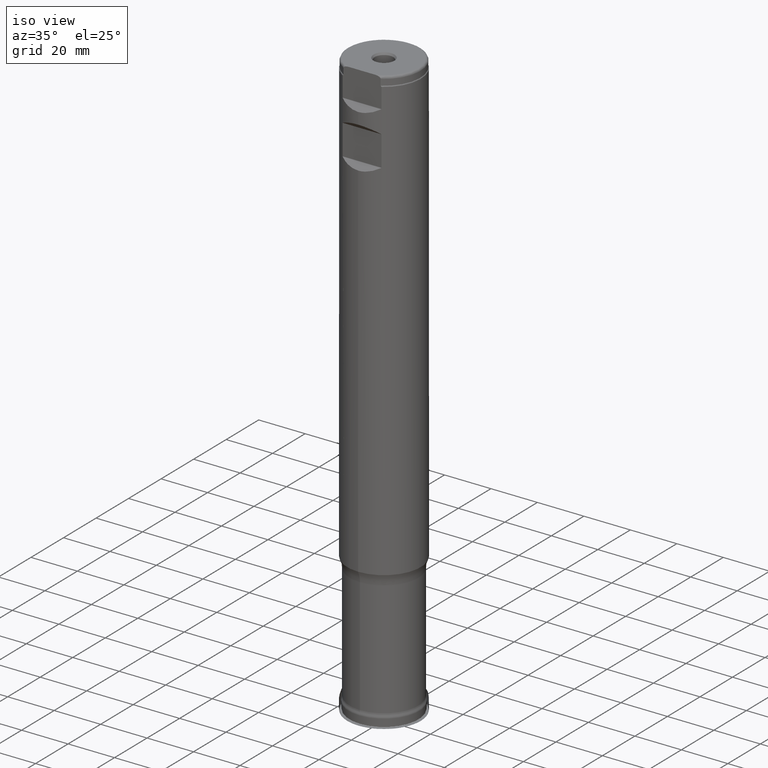
[diagram: clean part render]
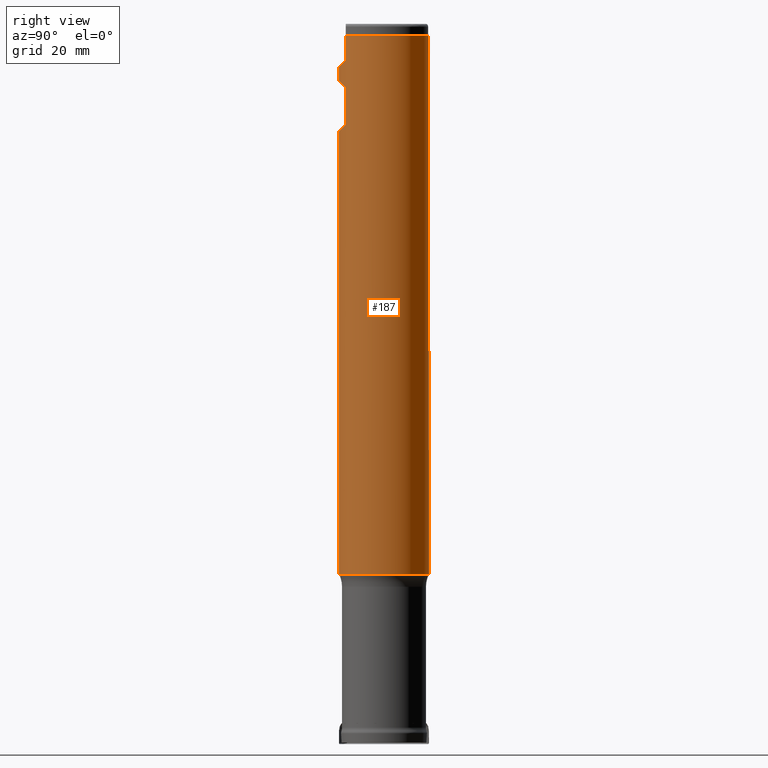
[diagram: tour spotlight — one face highlighted and labeled with its STEP entity id]
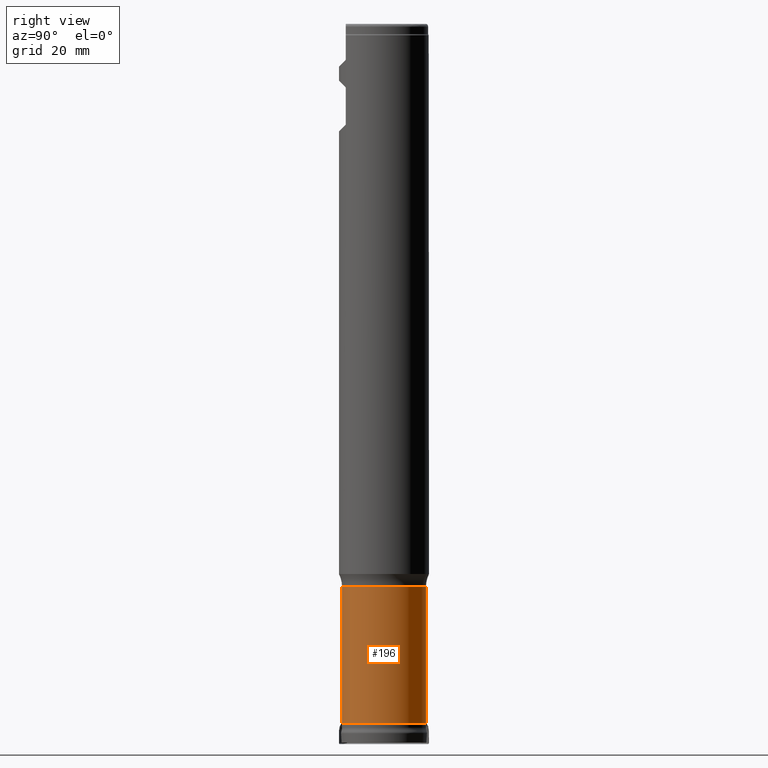
[diagram: tour spotlight — one face highlighted and labeled with its STEP entity id]
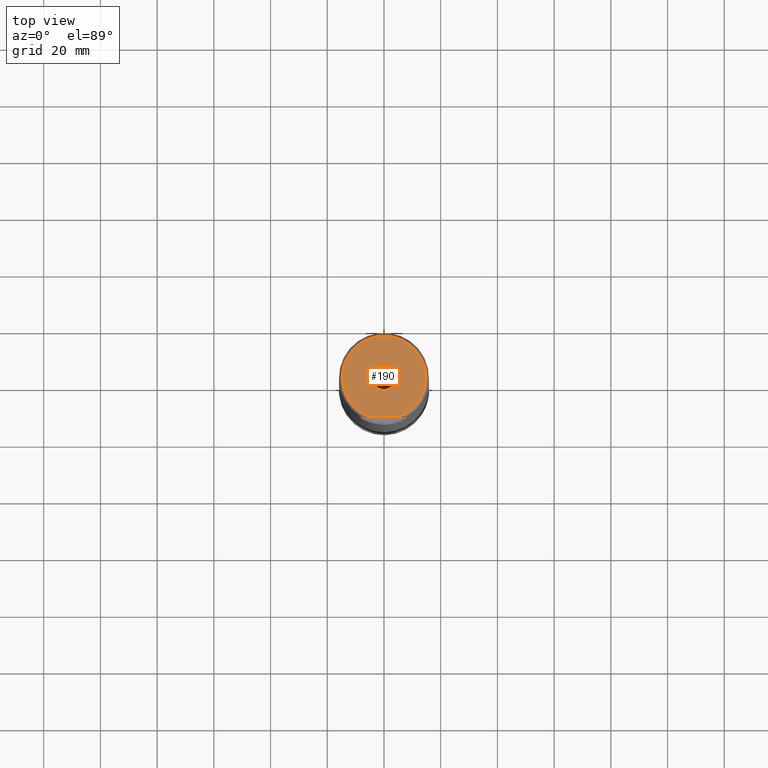
[diagram: tour spotlight — one face highlighted and labeled with its STEP entity id]
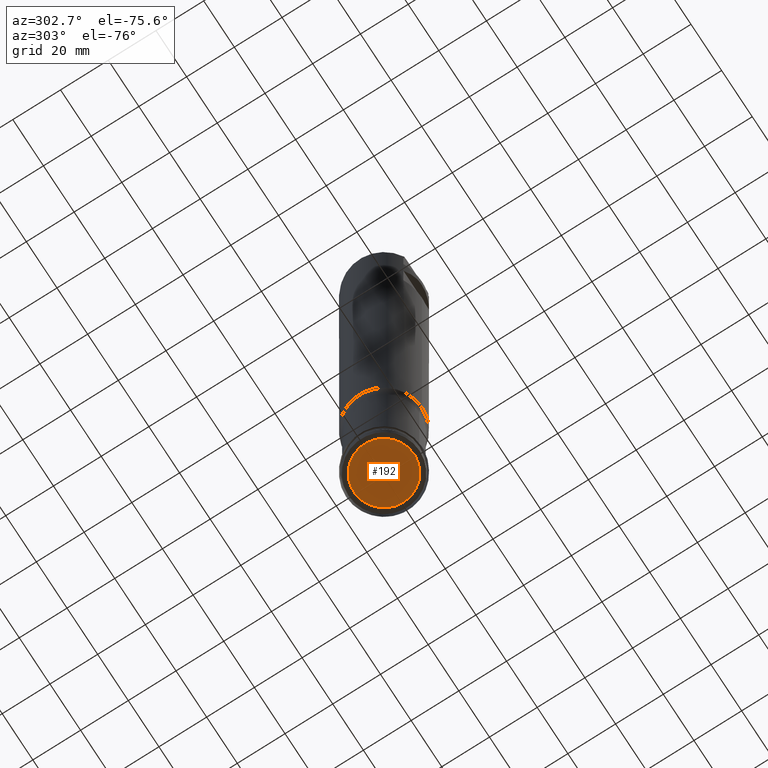
[diagram: tour spotlight — one face highlighted and labeled with its STEP entity id]
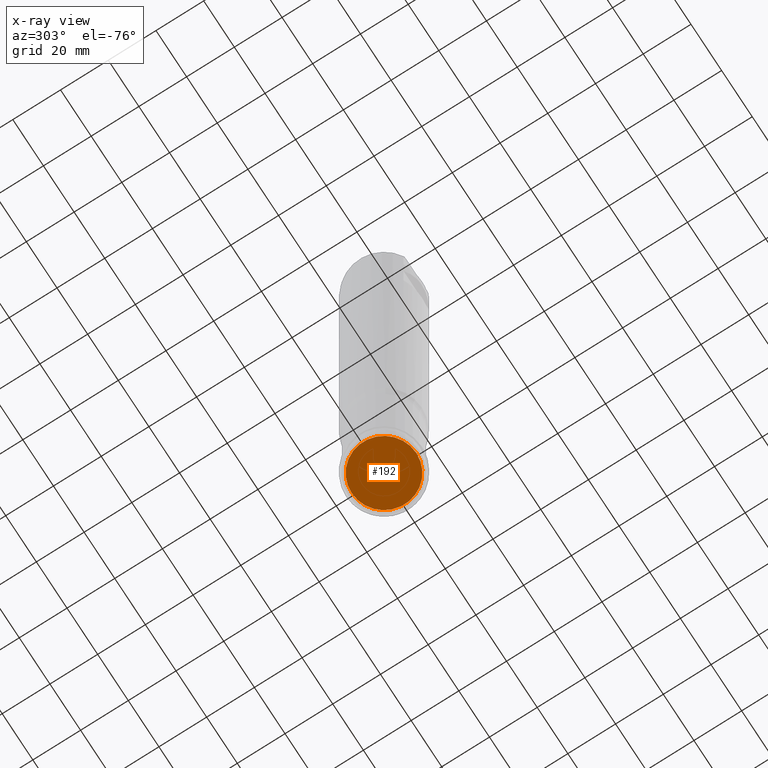
[diagram: x-ray of the same camera — body ghosted, this tour face saturated]
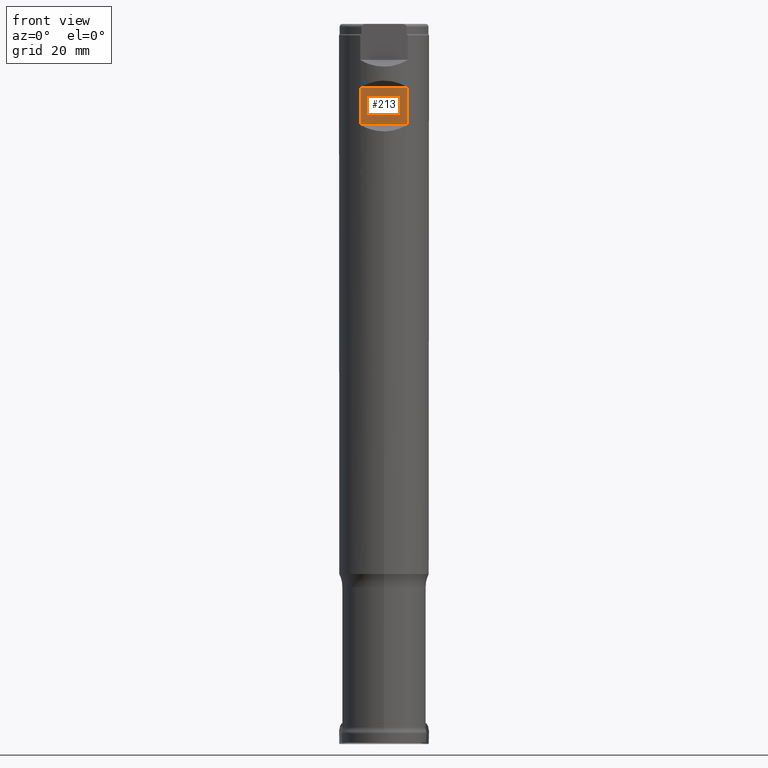
[diagram: tour spotlight — one face highlighted and labeled with its STEP entity id]
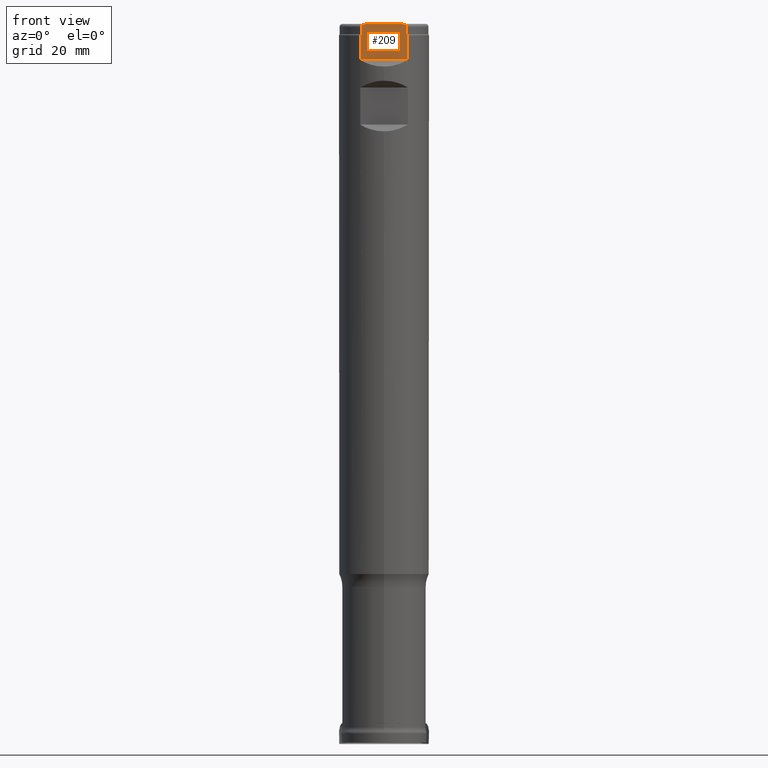
[diagram: tour spotlight — one face highlighted and labeled with its STEP entity id]
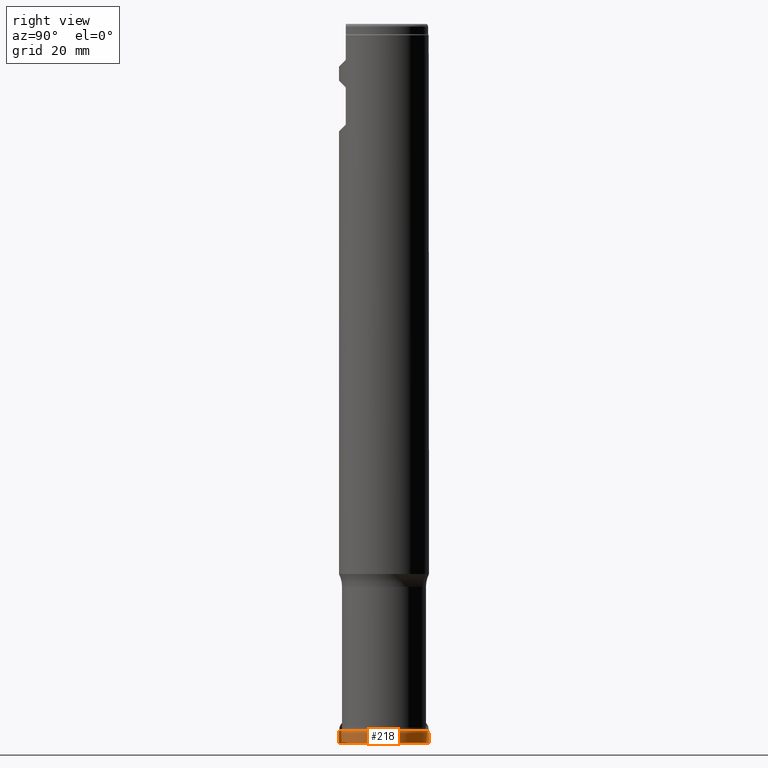
[diagram: tour spotlight — one face highlighted and labeled with its STEP entity id]
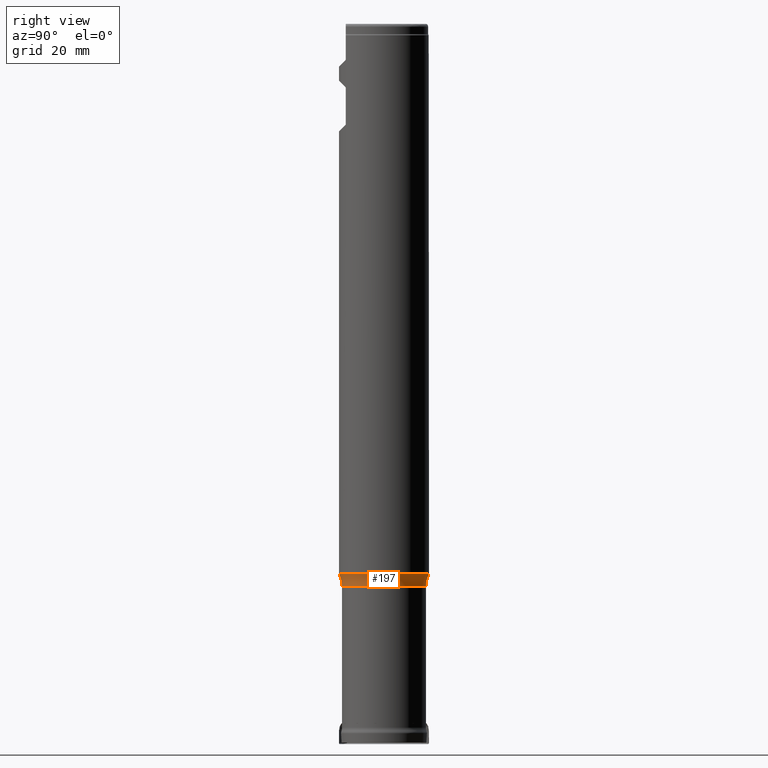
[diagram: tour spotlight — one face highlighted and labeled with its STEP entity id]
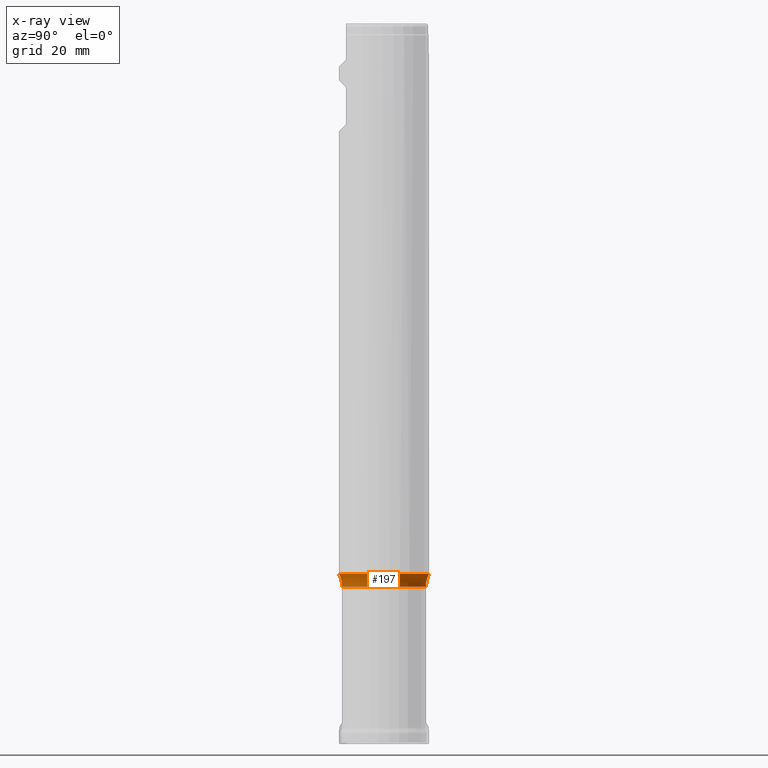
[diagram: x-ray of the same camera — body ghosted, this tour face saturated]
A machine part: a face-by-face anatomy tour. The part has 51 B-rep faces; the first image is the clean iso view, then the 8 largest visible faces are spotlighted one at a time (largest first), each with its STEP entity span.

Face 1 — right view, entity #187. In plain terms, the highlighted cylindrical surface (bore or boss wall) has radius 15.875 mm, axis along (0, 0, 1).
Definition (entity closure, byte-faithful):
#187=ADVANCED_FACE('',(#288,#289,#290),#238,.T.);
#238=CYLINDRICAL_SURFACE('',#816,15.875);
#246=CIRCLE('',#813,15.875);
#247=CIRCLE('',#814,15.875);
#288=FACE_BOUND('',#369,.T.);
#289=FACE_BOUND('',#370,.T.);
#290=FACE_BOUND('',#371,.T.);
#369=EDGE_LOOP('',(#500,#501,#502,#503,#504,#505,#506,#507));
#370=EDGE_LOOP('',(#508));
#371=EDGE_LOOP('',(#509,#510,#511,#512,#513,#514));
#459=LINE('',#1309,#478);
#460=LINE('',#1341,#479);
#461=LINE('',#1359,#480);
#462=LINE('',#1363,#481);
#478=VECTOR('',#890,1.);
#479=VECTOR('',#893,1.);
#480=VECTOR('',#896,1.);
#481=VECTOR('',#899,1.);
#497=ELLIPSE('',#811,22.4506403026729,15.875);
#498=ELLIPSE('',#812,22.4506403026729,15.875);
#499=ELLIPSE('',#815,22.4506403026729,15.875);
#500=ORIENTED_EDGE('',*,*,#696,.F.);
#501=ORIENTED_EDGE('',*,*,#697,.T.);
#502=ORIENTED_EDGE('',*,*,#698,.F.);
#503=ORIENTED_EDGE('',*,*,#699,.T.);
#504=ORIENTED_EDGE('',*,*,#700,.F.);
#505=ORIENTED_EDGE('',*,*,#701,.T.);
#506=ORIENTED_EDGE('',*,*,#702,.F.);
#507=ORIENTED_EDGE('',*,*,#703,.T.);
#508=ORIENTED_EDGE('',*,*,#704,.T.);
#509=ORIENTED_EDGE('',*,*,#705,.F.);
#510=ORIENTED_EDGE('',*,*,#706,.T.);
#511=ORIENTED_EDGE('',*,*,#707,.F.);
#512=ORIENTED_EDGE('',*,*,#708,.T.);
#513=ORIENTED_EDGE('',*,*,#709,.F.);
#514=ORIENTED_EDGE('',*,*,#710,.T.);
#636=VERTEX_POINT('',#1291);
#637=VERTEX_POINT('',#1292);
#638=VERTEX_POINT('',#1294);
#639=VERTEX_POINT('',#1308);
#640=VERTEX_POINT('',#1310);
#641=VERTEX_POINT('',#1324);
#642=VERTEX_POINT('',#1326);
#643=VERTEX_POINT('',#1340);
#644=VERTEX_POINT('',#1343);
#645=VERTEX_POINT('',#1357);
#646=VERTEX_POINT('',#1358);
#647=VERTEX_POINT('',#1360);
#648=VERTEX_POINT('',#1362);
#649=VERTEX_POINT('',#1364);
#650=VERTEX_POINT('',#1378);
#696=EDGE_CURVE('',#636,#637,#785,.T.);
#697=EDGE_CURVE('',#636,#638,#497,.T.);
#698=EDGE_CURVE('',#639,#638,#786,.T.);
#699=EDGE_CURVE('',#639,#640,#459,.T.);
#700=EDGE_CURVE('',#641,#640,#787,.T.);
#701=EDGE_CURVE('',#641,#642,#498,.T.);
#702=EDGE_CURVE('',#643,#642,#788,.T.);
#703=EDGE_CURVE('',#643,#637,#460,.T.);
#704=EDGE_CURVE('',#644,#644,#246,.T.);
#705=EDGE_CURVE('',#645,#646,#789,.T.);
#706=EDGE_CURVE('',#645,#647,#461,.T.);
#707=EDGE_CURVE('',#648,#647,#247,.T.);
#708=EDGE_CURVE('',#648,#649,#462,.T.);
#709=EDGE_CURVE('',#650,#649,#790,.T.);
#710=EDGE_CURVE('',#650,#646,#499,.T.);
#785=B_SPLINE_CURVE_WITH_KNOTS('',3,(#1278,#1279,#1280,#1281,#1282,#1283,
#1284,#1285,#1286,#1287,#1288,#1289,#1290),.UNSPECIFIED.,.F.,.F.,(4,3,3,
3,4),(0.,0.454533174547846,0.702164538890485,0.910432884672705,1.),
 .UNSPECIFIED.);
#786=B_SPLINE_CURVE_WITH_KNOTS('',3,(#1295,#1296,#1297,#1298,#1299,#1300,
#1301,#1302,#1303,#1304,#1305,#1306,#1307),.UNSPECIFIED.,.F.,.F.,(4,3,3,
3,4),(0.,0.19914721607593,0.441583635070344,0.807737111942782,1.),
 .UNSPECIFIED.);
#787=B_SPLINE_CURVE_WITH_KNOTS('',3,(#1311,#1312,#1313,#1314,#1315,#1316,
#1317,#1318,#1319,#1320,#1321,#1322,#1323),.UNSPECIFIED.,.F.,.F.,(4,3,3,
3,4),(0.,0.454533174547862,0.702164538890488,0.910432884672609,1.),
 .UNSPECIFIED.);
#788=B_SPLINE_CURVE_WITH_KNOTS('',3,(#1327,#1328,#1329,#1330,#1331,#1332,
#1333,#1334,#1335,#1336,#1337,#1338,#1339),.UNSPECIFIED.,.F.,.F.,(4,3,3,
3,4),(0.,0.19914721607583,0.441583635070221,0.807737111942809,1.),
 .UNSPECIFIED.);
#789=B_SPLINE_CURVE_WITH_KNOTS('',3,(#1344,#1345,#1346,#1347,#1348,#1349,
#1350,#1351,#1352,#1353,#1354,#1355,#1356),.UNSPECIFIED.,.F.,.F.,(4,3,3,
3,4),(0.,0.199147216075832,0.441583635070225,0.807737111942812,1.),
 .UNSPECIFIED.);
#790=B_SPLINE_CURVE_WITH_KNOTS('',3,(#1365,#1366,#1367,#1368,#1369,#1370,
#1371,#1372,#1373,#1374,#1375,#1376,#1377),.UNSPECIFIED.,.F.,.F.,(4,3,3,
3,4),(0.,0.454533174547855,0.702164538890484,0.910432884672608,1.),
 .UNSPECIFIED.);
#811=AXIS2_PLACEMENT_3D('',#1293,#888,#889);
#812=AXIS2_PLACEMENT_3D('',#1325,#891,#892);
#813=AXIS2_PLACEMENT_3D('',#1342,#894,#895);
#814=AXIS2_PLACEMENT_3D('',#1361,#897,#898);
#815=AXIS2_PLACEMENT_3D('',#1379,#900,#901);
#816=AXIS2_PLACEMENT_3D('',#1380,#902,#903);
#888=DIRECTION('',(8.28344032153662E-16,0.707106781186548,0.707106781186547));
#889=DIRECTION('',(-8.28344032153662E-16,-0.707106781186547,0.707106781186548));
#890=DIRECTION('',(0.,-1.17145536458252E-15,-1.));
#891=DIRECTION('',(-8.28344032153663E-16,0.707106781186547,-0.707106781186549));
#892=DIRECTION('',(-8.28344032153663E-16,0.707106781186549,0.707106781186547));
#893=DIRECTION('',(0.,1.17145536458252E-15,1.));
#894=DIRECTION('',(0.,1.17145536458252E-15,1.));
#895=DIRECTION('',(0.,-1.,1.31128703695885E-15));
#896=DIRECTION('',(0.,1.17145536458252E-15,1.));
#897=DIRECTION('',(0.,1.17145536458252E-15,1.));
#898=DIRECTION('',(0.,-1.,0.));
#899=DIRECTION('',(0.,-1.17145536458252E-15,-1.));
#900=DIRECTION('',(-8.28344032153662E-16,0.707106781186547,-0.707106781186548));
#901=DIRECTION('',(-8.28344032153661E-16,0.707106781186548,0.707106781186547));
#902=DIRECTION('',(0.,1.17145536458252E-15,1.));
#903=DIRECTION('',(0.,-1.,1.17145536458252E-15));
#1278=CARTESIAN_POINT('',(-8.22968557485393,-13.5752679656438,231.669192965644));
#1279=CARTESIAN_POINT('',(-8.26214403842775,-13.5555907887268,231.649515788727));
#1280=CARTESIAN_POINT('',(-8.29324127122086,-13.5365680579466,231.62516207342));
#1281=CARTESIAN_POINT('',(-8.31880056112414,-13.5208425116275,231.594709416179));
#1282=CARTESIAN_POINT('',(-8.33281049061591,-13.5122227966048,231.578017263056));
#1283=CARTESIAN_POINT('',(-8.34532550776586,-13.5044914646335,231.559155789535));
#1284=CARTESIAN_POINT('',(-8.35473859034975,-13.4986654187336,231.538500120755));
#1285=CARTESIAN_POINT('',(-8.36264707757228,-13.493770613111,231.521146072157));
#1286=CARTESIAN_POINT('',(-8.36846404353176,-13.4901610267411,231.502110432187));
#1287=CARTESIAN_POINT('',(-8.3711476120283,-13.4884955668757,231.482676158377));
#1288=CARTESIAN_POINT('',(-8.37231518540506,-13.4877709546285,231.474220648213));
#1289=CARTESIAN_POINT('',(-8.37291264972948,-13.4873999999997,231.465627374111));
#1290=CARTESIAN_POINT('',(-8.37291264972948,-13.4873999999997,231.457060931288));
#1291=CARTESIAN_POINT('',(-8.22968557485393,-13.5752679656438,231.669192965644));
#1292=CARTESIAN_POINT('',(-8.37291264972948,-13.4873999999997,231.457060931288));
#1293=CARTESIAN_POINT('',(0.,2.55487298424109E-13,218.093925));
#1294=CARTESIAN_POINT('',(8.22968557485393,-13.5752679656438,231.669192965644));
#1295=CARTESIAN_POINT('',(8.37291264972948,-13.4873999999997,231.457060931288));
#1296=CARTESIAN_POINT('',(8.37291264972948,-13.4873999999997,231.475881064048));
#1297=CARTESIAN_POINT('',(8.36992693774143,-13.4892545485355,231.494934859006));
#1298=CARTESIAN_POINT('',(8.36453687582311,-13.4925960383089,231.51265431373));
#1299=CARTESIAN_POINT('',(8.35798061989729,-13.4966604929404,231.534207550372));
#1300=CARTESIAN_POINT('',(8.34778398154641,-13.5029748527274,231.554425584553));
#1301=CARTESIAN_POINT('',(8.33568000754059,-13.5104427689059,231.572363542468));
#1302=CARTESIAN_POINT('',(8.31744673800205,-13.5216923410305,231.599385049741));
#1303=CARTESIAN_POINT('',(8.29449252987567,-13.5357984747799,231.622249165019));
#1304=CARTESIAN_POINT('',(8.27002445290943,-13.5507313658073,231.641419162972));
#1305=CARTESIAN_POINT('',(8.25706862585497,-13.5586383195838,231.651569661454));
#1306=CARTESIAN_POINT('',(8.24354784478495,-13.5668642919061,231.660789291911));
#1307=CARTESIAN_POINT('',(8.22968557485579,-13.5752679656428,231.669192965647));
#1308=CARTESIAN_POINT('',(8.37291264972948,-13.4873999999997,231.457060931288));
#1309=CARTESIAN_POINT('',(8.37291264972948,-13.4874,1.57998870842703E-14));
#1310=CARTESIAN_POINT('',(8.37291264972948,-13.4873999999997,218.599189068712));
#1311=CARTESIAN_POINT('',(8.22968557485392,-13.5752679656438,218.387057034356));
#1312=CARTESIAN_POINT('',(8.26214403842775,-13.5555907887268,218.406734211273));
#1313=CARTESIAN_POINT('',(8.29324127122085,-13.5365680579466,218.43108792658));
#1314=CARTESIAN_POINT('',(8.31880056112414,-13.5208425116275,218.461540583821));
#1315=CARTESIAN_POINT('',(8.3328104906159,-13.5122227966048,218.478232736944));
#1316=CARTESIAN_POINT('',(8.34532550776586,-13.5044914646335,218.497094210465));
#1317=CARTESIAN_POINT('',(8.35473859034975,-13.4986654187336,218.517749879245));
#1318=CARTESIAN_POINT('',(8.36264707757227,-13.493770613111,218.535103927843));
#1319=CARTESIAN_POINT('',(8.36846404353175,-13.4901610267411,218.554139567813));
#1320=CARTESIAN_POINT('',(8.3711476120283,-13.4884955668757,218.573573841623));
#1321=CARTESIAN_POINT('',(8.37231518540506,-13.4877709546285,218.582029351787));
#1322=CARTESIAN_POINT('',(8.37291264972949,-13.4873999999997,218.590622625889));
#1323=CARTESIAN_POINT('',(8.37291264972948,-13.4873999999997,218.599189068712));
#1324=CARTESIAN_POINT('',(8.22968557485392,-13.5752679656438,218.387057034356));
#1325=CARTESIAN_POINT('',(0.,2.71733510002285E-13,231.962325));
#1326=CARTESIAN_POINT('',(-8.22968557485393,-13.5752679656438,218.387057034356));
#1327=CARTESIAN_POINT('',(-8.37291264972948,-13.4873999999997,218.599189068712));
#1328=CARTESIAN_POINT('',(-8.37291264972949,-13.4873999999997,218.580368935952));
#1329=CARTESIAN_POINT('',(-8.36992693774143,-13.4892545485355,218.561315140994));
#1330=CARTESIAN_POINT('',(-8.36453687582311,-13.4925960383089,218.54359568627));
#1331=CARTESIAN_POINT('',(-8.35798061989729,-13.4966604929404,218.522042449628));
#1332=CARTESIAN_POINT('',(-8.34778398154642,-13.5029748527274,218.501824415447));
#1333=CARTESIAN_POINT('',(-8.3356800075406,-13.5104427689059,218.483886457532));
#1334=CARTESIAN_POINT('',(-8.31744673800206,-13.5216923410305,218.456864950259));
#1335=CARTESIAN_POINT('',(-8.29449252987566,-13.5357984747799,218.434000834981));
#1336=CARTESIAN_POINT('',(-8.27002445290941,-13.5507313658073,218.414830837028));
#1337=CARTESIAN_POINT('',(-8.25706862585496,-13.5586383195838,218.404680338546));
#1338=CARTESIAN_POINT('',(-8.24354784478493,-13.5668642919061,218.395460708089));
#1339=CARTESIAN_POINT('',(-8.22968557485578,-13.5752679656428,218.387057034353));
#1340=CARTESIAN_POINT('',(-8.37291264972948,-13.4873999999997,218.599189068712));
#1341=CARTESIAN_POINT('',(-8.37291264972948,-13.4874,1.57998870842703E-14));
#1342=CARTESIAN_POINT('',(0.,7.02812303070556E-14,59.9948));
#1343=CARTESIAN_POINT('',(0.,-15.8749999999999,59.9948));
#1344=CARTESIAN_POINT('',(-8.37291264972948,-13.4873999999997,241.424264068712));
#1345=CARTESIAN_POINT('',(-8.37291264972949,-13.4873999999997,241.405443935952));
#1346=CARTESIAN_POINT('',(-8.36992693774143,-13.4892545485354,241.386390140994));
#1347=CARTESIAN_POINT('',(-8.36453687582311,-13.4925960383088,241.36867068627));
#1348=CARTESIAN_POINT('',(-8.35798061989729,-13.4966604929404,241.347117449628));
#1349=CARTESIAN_POINT('',(-8.34778398154642,-13.5029748527274,241.326899415447));
#1350=CARTESIAN_POINT('',(-8.3356800075406,-13.5104427689058,241.308961457532));
#1351=CARTESIAN_POINT('',(-8.31744673800206,-13.5216923410305,241.281939950259));
#1352=CARTESIAN_POINT('',(-8.29449252987566,-13.5357984747799,241.259075834981));
#1353=CARTESIAN_POINT('',(-8.27002445290941,-13.5507313658073,241.239905837028));
#1354=CARTESIAN_POINT('',(-8.25706862585496,-13.5586383195838,241.229755338546));
#1355=CARTESIAN_POINT('',(-8.24354784478494,-13.5668642919061,241.220535708089));
#1356=CARTESIAN_POINT('',(-8.22968557485579,-13.5752679656428,241.212132034353));
#1357=CARTESIAN_POINT('',(-8.37291264972948,-13.4873999999997,241.424264068712));
#1358=CARTESIAN_POINT('',(-8.22968557485393,-13.5752679656438,241.212132034356));
#1359=CARTESIAN_POINT('',(-8.37291264972948,-13.4874,1.57998870842703E-14));
#1360=CARTESIAN_POINT('',(-8.37291264972948,-13.4873999999997,250.));
#1361=CARTESIAN_POINT('',(0.,2.92863841145631E-13,250.));
#1362=CARTESIAN_POINT('',(8.37291264972948,-13.4873999999997,250.));
#1363=CARTESIAN_POINT('',(8.37291264972948,-13.4874,1.57998870842703E-14));
#1364=CARTESIAN_POINT('',(8.37291264972948,-13.4873999999997,241.424264068712));
#1365=CARTESIAN_POINT('',(8.22968557485393,-13.5752679656438,241.212132034356));
#1366=CARTESIAN_POINT('',(8.26214403842775,-13.5555907887268,241.231809211273));
#1367=CARTESIAN_POINT('',(8.29324127122085,-13.5365680579466,241.25616292658));
#1368=CARTESIAN_POINT('',(8.31880056112414,-13.5208425116275,241.286615583821));
#1369=CARTESIAN_POINT('',(8.3328104906159,-13.5122227966048,241.303307736944));
#1370=CARTESIAN_POINT('',(8.34532550776586,-13.5044914646335,241.322169210465));
#1371=CARTESIAN_POINT('',(8.35473859034975,-13.4986654187336,241.342824879245));
#1372=CARTESIAN_POINT('',(8.36264707757227,-13.493770613111,241.360178927843));
#1373=CARTESIAN_POINT('',(8.36846404353175,-13.4901610267411,241.379214567813));
#1374=CARTESIAN_POINT('',(8.3711476120283,-13.4884955668757,241.398648841623));
#1375=CARTESIAN_POINT('',(8.37231518540506,-13.4877709546284,241.407104351787));
#1376=CARTESIAN_POINT('',(8.37291264972949,-13.4873999999997,241.415697625889));
#1377=CARTESIAN_POINT('',(8.37291264972948,-13.4873999999997,241.424264068712));
#1378=CARTESIAN_POINT('',(8.22968557485393,-13.5752679656438,241.212132034356));
#1379=CARTESIAN_POINT('',(0.,2.98472066558033E-13,254.7874));
#1380=CARTESIAN_POINT('',(0.,0.,0.));

Face 2 — right view, entity #196. In plain terms, the highlighted cylindrical surface (bore or boss wall) has radius 14.8 mm, axis along (0, 0, 1).
Definition (entity closure, byte-faithful):
#196=ADVANCED_FACE('',(#301,#302),#240,.T.);
#240=CYLINDRICAL_SURFACE('',#839,14.8);
#260=CIRCLE('',#837,14.8);
#261=CIRCLE('',#838,14.8);
#301=FACE_BOUND('',#385,.T.);
#302=FACE_BOUND('',#386,.T.);
#385=EDGE_LOOP('',(#538));
#386=EDGE_LOOP('',(#539));
#538=ORIENTED_EDGE('',*,*,#730,.T.);
#539=ORIENTED_EDGE('',*,*,#731,.T.);
#666=VERTEX_POINT('',#1444);
#667=VERTEX_POINT('',#1446);
#730=EDGE_CURVE('',#666,#666,#260,.T.);
#731=EDGE_CURVE('',#667,#667,#261,.T.);
#837=AXIS2_PLACEMENT_3D('',#1443,#947,#948);
#838=AXIS2_PLACEMENT_3D('',#1445,#949,#950);
#839=AXIS2_PLACEMENT_3D('',#1447,#951,#952);
#947=DIRECTION('',(0.,1.17145536458252E-15,1.));
#948=DIRECTION('',(0.,-1.,1.17211045674109E-15));
#949=DIRECTION('',(0.,-1.17145536458252E-15,-1.));
#950=DIRECTION('',(0.,-1.,9.37688365392869E-16));
#951=DIRECTION('',(0.,1.17145536458252E-15,1.));
#952=DIRECTION('',(0.,-1.,1.17145536458252E-15));
#1443=CARTESIAN_POINT('',(0.,6.80309287539452E-15,5.80738548055475));
#1444=CARTESIAN_POINT('',(0.,-14.8,5.80738548055477));
#1445=CARTESIAN_POINT('',(0.,6.49974114344545E-14,55.4843260781155));
#1446=CARTESIAN_POINT('',(0.,-14.7999999999999,55.4843260781155));
#1447=CARTESIAN_POINT('',(0.,0.,0.));

Face 3 — top view, entity #190. In plain terms, the highlighted planar face has unit normal (0, 0, 1).
Definition (entity closure, byte-faithful):
#161=PLANE('',#823);
#190=ADVANCED_FACE('',(#291,#292),#161,.T.);
#250=CIRCLE('',#821,4.5);
#251=CIRCLE('',#822,14.675);
#291=FACE_BOUND('',#374,.T.);
#292=FACE_BOUND('',#375,.T.);
#374=EDGE_LOOP('',(#523));
#375=EDGE_LOOP('',(#524,#525));
#465=LINE('',#1404,#484);
#484=VECTOR('',#918,1.);
#523=ORIENTED_EDGE('',*,*,#717,.T.);
#524=ORIENTED_EDGE('',*,*,#718,.T.);
#525=ORIENTED_EDGE('',*,*,#719,.T.);
#655=VERTEX_POINT('',#1400);
#656=VERTEX_POINT('',#1402);
#657=VERTEX_POINT('',#1403);
#717=EDGE_CURVE('',#655,#655,#250,.T.);
#718=EDGE_CURVE('',#656,#657,#251,.T.);
#719=EDGE_CURVE('',#657,#656,#465,.T.);
#821=AXIS2_PLACEMENT_3D('',#1399,#914,#915);
#822=AXIS2_PLACEMENT_3D('',#1401,#916,#917);
#823=AXIS2_PLACEMENT_3D('',#1405,#919,#920);
#914=DIRECTION('',(0.,-1.17145536458252E-15,-1.));
#915=DIRECTION('',(0.,-1.,0.));
#916=DIRECTION('',(0.,1.17145536458252E-15,1.));
#917=DIRECTION('',(0.,-1.,0.));
#918=DIRECTION('',(1.,-1.37230767120917E-30,-1.17145536458252E-15));
#919=DIRECTION('',(0.,1.17145536458252E-15,1.));
#920=DIRECTION('',(0.,-1.,1.16573417585641E-15));
#1399=CARTESIAN_POINT('',(0.,2.97549662603961E-13,254.));
#1400=CARTESIAN_POINT('',(0.,-4.4999999999997,254.));
#1401=CARTESIAN_POINT('',(0.,2.97549662603961E-13,254.));
#1402=CARTESIAN_POINT('',(5.78322282468844,-13.4873999999997,254.));
#1403=CARTESIAN_POINT('',(-5.78322282468865,-13.4873999999997,254.));
#1404=CARTESIAN_POINT('',(-17.5,-13.4873999999997,254.));
#1405=CARTESIAN_POINT('',(0.,2.97549662603961E-13,254.));

Face 4 — auxiliary view, entity #192. An x-ray twin of the same camera follows (body ghosted, this face saturated) — the face is partly hidden behind the body. In plain terms, the highlighted planar face has unit normal (0, -0, -1).
Definition (entity closure, byte-faithful):
#162=PLANE('',#827);
#192=ADVANCED_FACE('',(#293,#294),#162,.T.);
#252=CIRCLE('',#825,1.);
#253=CIRCLE('',#826,13.5347913145457);
#293=FACE_BOUND('',#377,.T.);
#294=FACE_BOUND('',#378,.T.);
#377=EDGE_LOOP('',(#530));
#378=EDGE_LOOP('',(#531));
#530=ORIENTED_EDGE('',*,*,#722,.T.);
#531=ORIENTED_EDGE('',*,*,#723,.T.);
#658=VERTEX_POINT('',#1424);
#659=VERTEX_POINT('',#1426);
#722=EDGE_CURVE('',#658,#658,#252,.T.);
#723=EDGE_CURVE('',#659,#659,#253,.T.);
#825=AXIS2_PLACEMENT_3D('',#1423,#923,#924);
#826=AXIS2_PLACEMENT_3D('',#1425,#925,#926);
#827=AXIS2_PLACEMENT_3D('',#1427,#927,#928);
#923=DIRECTION('',(0.,1.17145536458252E-15,1.));
#924=DIRECTION('',(0.,-1.,1.19262238973405E-15));
#925=DIRECTION('',(0.,-1.17145536458252E-15,-1.));
#926=DIRECTION('',(0.,1.,-1.16953053434054E-15));
#927=DIRECTION('',(0.,-1.17145536458252E-15,-1.));
#928=DIRECTION('',(0.,1.,-1.17148044737059E-15));
#1423=CARTESIAN_POINT('',(0.,7.61445986978644E-16,0.650000000000003));
#1424=CARTESIAN_POINT('',(0.,-0.999999999999999,0.650000000000004));
#1425=CARTESIAN_POINT('',(0.,7.61445986978645E-16,0.650000000000004));
#1426=CARTESIAN_POINT('',(0.,13.5347913145457,0.649999999999988));
#1427=CARTESIAN_POINT('',(13.7948439387259,7.61445986978645E-16,0.650000000000004));

Face 5 — front view, entity #213. In plain terms, the highlighted planar face has unit normal (0, -1, 0).
Definition (entity closure, byte-faithful):
#167=PLANE('',#861);
#183=FACE_OUTER_BOUND('',#413,.T.);
#213=ADVANCED_FACE('',(#183),#167,.T.);
#413=EDGE_LOOP('',(#580,#581,#582,#583));
#459=LINE('',#1309,#478);
#460=LINE('',#1341,#479);
#469=LINE('',#1479,#488);
#470=LINE('',#1480,#489);
#478=VECTOR('',#890,1.);
#479=VECTOR('',#893,1.);
#488=VECTOR('',#998,1.);
#489=VECTOR('',#999,1.);
#580=ORIENTED_EDGE('',*,*,#740,.T.);
#581=ORIENTED_EDGE('',*,*,#703,.F.);
#582=ORIENTED_EDGE('',*,*,#741,.T.);
#583=ORIENTED_EDGE('',*,*,#699,.F.);
#637=VERTEX_POINT('',#1292);
#639=VERTEX_POINT('',#1308);
#640=VERTEX_POINT('',#1310);
#643=VERTEX_POINT('',#1340);
#699=EDGE_CURVE('',#639,#640,#459,.T.);
#703=EDGE_CURVE('',#643,#637,#460,.T.);
#740=EDGE_CURVE('',#639,#637,#469,.T.);
#741=EDGE_CURVE('',#643,#640,#470,.T.);
#861=AXIS2_PLACEMENT_3D('',#1481,#1000,#1001);
#890=DIRECTION('',(0.,-1.17145536458252E-15,-1.));
#893=DIRECTION('',(0.,1.17145536458252E-15,1.));
#998=DIRECTION('',(-1.,1.37230767120917E-30,1.17145536458252E-15));
#999=DIRECTION('',(1.,-1.37230767120917E-30,-1.17145536458252E-15));
#1000=DIRECTION('',(0.,-1.,1.17145536458252E-15));
#1001=DIRECTION('',(1.17267306976032E-15,1.17093834628434E-15,1.));
#1292=CARTESIAN_POINT('',(-8.37291264972948,-13.4873999999997,231.457060931288));
#1308=CARTESIAN_POINT('',(8.37291264972948,-13.4873999999997,231.457060931288));
#1309=CARTESIAN_POINT('',(8.37291264972948,-13.4874,1.57998870842703E-14));
#1310=CARTESIAN_POINT('',(8.37291264972948,-13.4873999999997,218.599189068712));
#1340=CARTESIAN_POINT('',(-8.37291264972948,-13.4873999999997,218.599189068712));
#1341=CARTESIAN_POINT('',(-8.37291264972948,-13.4874,1.57998870842703E-14));
#1479=CARTESIAN_POINT('',(-17.5,-13.4873999999997,231.457060931288));
#1480=CARTESIAN_POINT('',(-17.5,-13.4873999999997,218.599189068712));
#1481=CARTESIAN_POINT('',(-17.5,-13.4873999999997,231.581325));

Face 6 — front view, entity #209. In plain terms, the highlighted planar face has unit normal (0, -1, 0).
Definition (entity closure, byte-faithful):
#164=PLANE('',#857);
#179=FACE_OUTER_BOUND('',#409,.T.);
#209=ADVANCED_FACE('',(#179),#164,.T.);
#409=EDGE_LOOP('',(#562,#563,#564,#565,#566,#567,#568,#569,#570,#571));
#461=LINE('',#1359,#480);
#462=LINE('',#1363,#481);
#463=LINE('',#1396,#482);
#464=LINE('',#1397,#483);
#465=LINE('',#1404,#484);
#466=LINE('',#1472,#485);
#480=VECTOR('',#896,1.);
#481=VECTOR('',#899,1.);
#482=VECTOR('',#910,1.);
#483=VECTOR('',#911,1.);
#484=VECTOR('',#918,1.);
#485=VECTOR('',#987,1.);
#562=ORIENTED_EDGE('',*,*,#737,.T.);
#563=ORIENTED_EDGE('',*,*,#708,.F.);
#564=ORIENTED_EDGE('',*,*,#713,.F.);
#565=ORIENTED_EDGE('',*,*,#715,.F.);
#566=ORIENTED_EDGE('',*,*,#721,.F.);
#567=ORIENTED_EDGE('',*,*,#719,.F.);
#568=ORIENTED_EDGE('',*,*,#720,.F.);
#569=ORIENTED_EDGE('',*,*,#716,.F.);
#570=ORIENTED_EDGE('',*,*,#711,.F.);
#571=ORIENTED_EDGE('',*,*,#706,.F.);
#645=VERTEX_POINT('',#1357);
#647=VERTEX_POINT('',#1360);
#648=VERTEX_POINT('',#1362);
#649=VERTEX_POINT('',#1364);
#651=VERTEX_POINT('',#1385);
#652=VERTEX_POINT('',#1387);
#653=VERTEX_POINT('',#1394);
#654=VERTEX_POINT('',#1395);
#656=VERTEX_POINT('',#1402);
#657=VERTEX_POINT('',#1403);
#706=EDGE_CURVE('',#645,#647,#461,.T.);
#708=EDGE_CURVE('',#648,#649,#462,.T.);
#711=EDGE_CURVE('',#647,#651,#791,.T.);
#713=EDGE_CURVE('',#652,#648,#792,.T.);
#715=EDGE_CURVE('',#654,#652,#463,.T.);
#716=EDGE_CURVE('',#651,#653,#464,.T.);
#719=EDGE_CURVE('',#657,#656,#465,.T.);
#720=EDGE_CURVE('',#653,#657,#793,.T.);
#721=EDGE_CURVE('',#656,#654,#794,.T.);
#737=EDGE_CURVE('',#645,#649,#466,.T.);
#791=B_SPLINE_CURVE_WITH_KNOTS('',3,(#1381,#1382,#1383,#1384),
 .UNSPECIFIED.,.F.,.F.,(4,4),(0.,1.),.UNSPECIFIED.);
#792=B_SPLINE_CURVE_WITH_KNOTS('',3,(#1388,#1389,#1390,#1391),
 .UNSPECIFIED.,.F.,.F.,(4,4),(0.,1.),.UNSPECIFIED.);
#793=B_SPLINE_CURVE_WITH_KNOTS('',3,(#1406,#1407,#1408,#1409,#1410,#1411,
#1412,#1413),.UNSPECIFIED.,.F.,.F.,(4,2,2,4),(0.,0.249999999999999,0.499999999999999,
1.),.UNSPECIFIED.);
#794=B_SPLINE_CURVE_WITH_KNOTS('',3,(#1414,#1415,#1416,#1417,#1418,#1419,
#1420,#1421),.UNSPECIFIED.,.F.,.F.,(4,2,2,4),(0.,0.500000000000009,0.750000000000005,
1.),.UNSPECIFIED.);
#857=AXIS2_PLACEMENT_3D('',#1473,#988,#989);
#896=DIRECTION('',(0.,1.17145536458252E-15,1.));
#899=DIRECTION('',(0.,-1.17145536458252E-15,-1.));
#910=DIRECTION('',(0.,-1.17145536458252E-15,-1.));
#911=DIRECTION('',(0.,1.17145536458252E-15,1.));
#918=DIRECTION('',(1.,-1.37230767120917E-30,-1.17145536458252E-15));
#987=DIRECTION('',(1.,-1.37230767120917E-30,-1.17145536458252E-15));
#988=DIRECTION('',(0.,-1.,1.17145536458252E-15));
#989=DIRECTION('',(1.17267306976032E-15,1.17093834628434E-15,1.));
#1357=CARTESIAN_POINT('',(-8.37291264972948,-13.4873999999997,241.424264068712));
#1359=CARTESIAN_POINT('',(-8.37291264972948,-13.4874,1.57998870842703E-14));
#1360=CARTESIAN_POINT('',(-8.37291264972948,-13.4873999999997,250.));
#1362=CARTESIAN_POINT('',(8.37291264972948,-13.4873999999997,250.));
#1363=CARTESIAN_POINT('',(8.37291264972948,-13.4874,1.57998870842703E-14));
#1364=CARTESIAN_POINT('',(8.37291264972948,-13.4873999999997,241.424264068712));
#1381=CARTESIAN_POINT('',(-8.3729126497295,-13.4873999999997,250.));
#1382=CARTESIAN_POINT('',(-8.24537216173965,-13.4873999999997,250.116512233654));
#1383=CARTESIAN_POINT('',(-8.11683755434126,-13.4873999999997,250.232012782716));
#1384=CARTESIAN_POINT('',(-7.98721893026606,-13.4873999999997,250.346410161514));
#1385=CARTESIAN_POINT('',(-7.98721893026603,-13.4873999999997,250.346410161514));
#1387=CARTESIAN_POINT('',(7.98721893026603,-13.4873999999997,250.346410161514));
#1388=CARTESIAN_POINT('',(7.98721893026604,-13.4873999999997,250.346410161514));
#1389=CARTESIAN_POINT('',(8.11685003072469,-13.4873999999997,250.232001771447));
#1390=CARTESIAN_POINT('',(8.24538408682384,-13.4873999999997,250.116501339716));
#1391=CARTESIAN_POINT('',(8.37291264972948,-13.4873999999997,250.));
#1394=CARTESIAN_POINT('',(-7.98721893028871,-13.4873999999997,252.999999999989));
#1395=CARTESIAN_POINT('',(7.98721893026603,-13.4873999999997,253.));
#1396=CARTESIAN_POINT('',(7.98721893026603,-13.4874,1.57998870842703E-14));
#1397=CARTESIAN_POINT('',(-7.98721893026603,-13.4874,1.57998870842703E-14));
#1402=CARTESIAN_POINT('',(5.78322282468844,-13.4873999999997,254.));
#1403=CARTESIAN_POINT('',(-5.78322282468865,-13.4873999999997,254.));
#1404=CARTESIAN_POINT('',(-17.5,-13.4873999999997,254.));
#1406=CARTESIAN_POINT('',(-7.98721893026688,-13.4873999999997,252.999999999988));
#1407=CARTESIAN_POINT('',(-7.98721893027207,-13.4873999999997,253.22020277002));
#1408=CARTESIAN_POINT('',(-7.83736774434979,-13.4873999999997,253.415154682752));
#1409=CARTESIAN_POINT('',(-7.48623082979296,-13.4873999999997,253.680139720299));
#1410=CARTESIAN_POINT('',(-7.2817203242156,-13.4873999999997,253.767554950671));
#1411=CARTESIAN_POINT('',(-6.65729293981298,-13.4873999999997,253.9609297127));
#1412=CARTESIAN_POINT('',(-6.21637245039725,-13.4873999999997,254.));
#1413=CARTESIAN_POINT('',(-5.78322282468865,-13.4873999999997,254.));
#1414=CARTESIAN_POINT('',(5.78322282468844,-13.4873999999997,254.));
#1415=CARTESIAN_POINT('',(6.21394869343174,-13.4873999999997,254.));
#1416=CARTESIAN_POINT('',(6.65580566004196,-13.4873999999997,253.961664403719));
#1417=CARTESIAN_POINT('',(7.28486381477456,-13.4873999999997,253.76644362587));
#1418=CARTESIAN_POINT('',(7.48748729423045,-13.4873999999997,253.679507582041));
#1419=CARTESIAN_POINT('',(7.83842269980535,-13.4873999999997,253.414040424023));
#1420=CARTESIAN_POINT('',(7.98721893026604,-13.4873999999997,253.222383261353));
#1421=CARTESIAN_POINT('',(7.98721893026603,-13.4873999999997,253.));
#1472=CARTESIAN_POINT('',(-17.5,-13.4873999999997,241.424264068712));
#1473=CARTESIAN_POINT('',(-17.5,-13.4873999999997,254.));

Face 7 — right view, entity #218. In plain terms, the highlighted face is a SurfaceOfRevolution surface.
Definition (entity closure, byte-faithful):
#109=SURFACE_OF_REVOLUTION('',#796,#130);
#130=AXIS1_PLACEMENT('',#1510,#1016);
#218=ADVANCED_FACE('',(#329,#330),#109,.F.);
#268=CIRCLE('',#866,15.875);
#269=CIRCLE('',#867,15.8750004037805);
#329=FACE_BOUND('',#419,.T.);
#330=FACE_BOUND('',#420,.T.);
#419=EDGE_LOOP('',(#596));
#420=EDGE_LOOP('',(#597));
#596=ORIENTED_EDGE('',*,*,#744,.T.);
#597=ORIENTED_EDGE('',*,*,#745,.F.);
#676=VERTEX_POINT('',#1489);
#677=VERTEX_POINT('',#1497);
#744=EDGE_CURVE('',#676,#676,#268,.T.);
#745=EDGE_CURVE('',#677,#677,#269,.T.);
#796=B_SPLINE_CURVE_WITH_KNOTS('',3,(#1498,#1499,#1500,#1501,#1502,#1503,
#1504,#1505,#1506,#1507,#1508,#1509),.UNSPECIFIED.,.F.,.F.,(4,1,1,1,1,1,
1,1,1,4),(0.,0.0557572126970923,0.0918984441691398,0.128039675641187,0.200322138585282,
0.344887064473473,0.489451990361663,0.634016916249853,0.778581842138043,
1.),.UNSPECIFIED.);
#866=AXIS2_PLACEMENT_3D('',#1488,#1011,#1012);
#867=AXIS2_PLACEMENT_3D('',#1496,#1014,#1015);
#1011=DIRECTION('',(0.,1.17145536458252E-15,1.));
#1012=DIRECTION('',(0.,-1.,1.14737615733899E-15));
#1014=DIRECTION('',(0.,1.17145536458252E-15,1.));
#1015=DIRECTION('',(0.,-1.,1.17127979749206E-15));
#1016=DIRECTION('',(0.,1.17145536458252E-15,1.));
#1488=CARTESIAN_POINT('',(0.,5.51529678885996E-15,4.70807250161467));
#1489=CARTESIAN_POINT('',(0.,-15.875,4.70807250161468));
#1496=CARTESIAN_POINT('',(0.,4.59921128047898E-16,0.392606617335183));
#1497=CARTESIAN_POINT('',(0.,-15.8750004037805,0.392606617335202));
#1498=CARTESIAN_POINT('',(15.7293861401562,-2.14523553937342,0.392607157457086));
#1499=CARTESIAN_POINT('',(15.7319599962928,-2.13402114132471,0.474848150035781));
#1500=CARTESIAN_POINT('',(15.736416394409,-2.11406745399222,0.610121558342135));
#1501=CARTESIAN_POINT('',(15.7461884600274,-2.06349646548573,0.793765557072037));
#1502=CARTESIAN_POINT('',(15.7566408655823,-2.00825391568342,1.00140926108247));
#1503=CARTESIAN_POINT('',(15.7744160904378,-1.91071241605558,1.36462005509773));
#1504=CARTESIAN_POINT('',(15.7981364430541,-1.77172392263989,1.88366082987139));
#1505=CARTESIAN_POINT('',(15.8224178353493,-1.60479548571147,2.50664705720751));
#1506=CARTESIAN_POINT('',(15.8390694091797,-1.43780571739473,3.12986191923738));
#1507=CARTESIAN_POINT('',(15.8483805281153,-1.24117432183105,3.86370059295338));
#1508=CARTESIAN_POINT('',(15.8461565177536,-1.10020475077174,4.38980612042258));
#1509=CARTESIAN_POINT('',(15.8425235121466,-1.01492549829107,4.70807250161467));
#1510=CARTESIAN_POINT('',(0.,0.,0.));

Face 8 — right view, entity #197. An x-ray twin of the same camera follows (body ghosted, this face saturated) — the face is partly hidden behind the body. In plain terms, the highlighted toroidal blend (fillet) surface has major radius 24.8 mm and minor (blend) radius 10 mm.
Definition (entity closure, byte-faithful):
#155=TOROIDAL_SURFACE('',#840,24.8,10.);
#197=ADVANCED_FACE('',(#303,#304),#155,.F.);
#246=CIRCLE('',#813,15.875);
#261=CIRCLE('',#838,14.8);
#303=FACE_BOUND('',#387,.T.);
#304=FACE_BOUND('',#388,.T.);
#387=EDGE_LOOP('',(#540));
#388=EDGE_LOOP('',(#541));
#540=ORIENTED_EDGE('',*,*,#731,.F.);
#541=ORIENTED_EDGE('',*,*,#704,.F.);
#644=VERTEX_POINT('',#1343);
#667=VERTEX_POINT('',#1446);
#704=EDGE_CURVE('',#644,#644,#246,.T.);
#731=EDGE_CURVE('',#667,#667,#261,.T.);
#813=AXIS2_PLACEMENT_3D('',#1342,#894,#895);
#838=AXIS2_PLACEMENT_3D('',#1445,#949,#950);
#840=AXIS2_PLACEMENT_3D('',#1448,#953,#954);
#894=DIRECTION('',(0.,1.17145536458252E-15,1.));
#895=DIRECTION('',(0.,-1.,1.31128703695885E-15));
#949=DIRECTION('',(0.,-1.17145536458252E-15,-1.));
#950=DIRECTION('',(0.,-1.,9.37688365392869E-16));
#953=DIRECTION('',(0.,1.17145536458252E-15,1.));
#954=DIRECTION('',(0.,-1.,1.19636101791504E-15));
#1342=CARTESIAN_POINT('',(0.,7.02812303070556E-14,59.9948));
#1343=CARTESIAN_POINT('',(0.,-15.8749999999999,59.9948));
#1445=CARTESIAN_POINT('',(0.,6.49974114344545E-14,55.4843260781155));
#1446=CARTESIAN_POINT('',(0.,-14.7999999999999,55.4843260781155));
#1448=CARTESIAN_POINT('',(0.,6.49974114344545E-14,55.4843260781155));